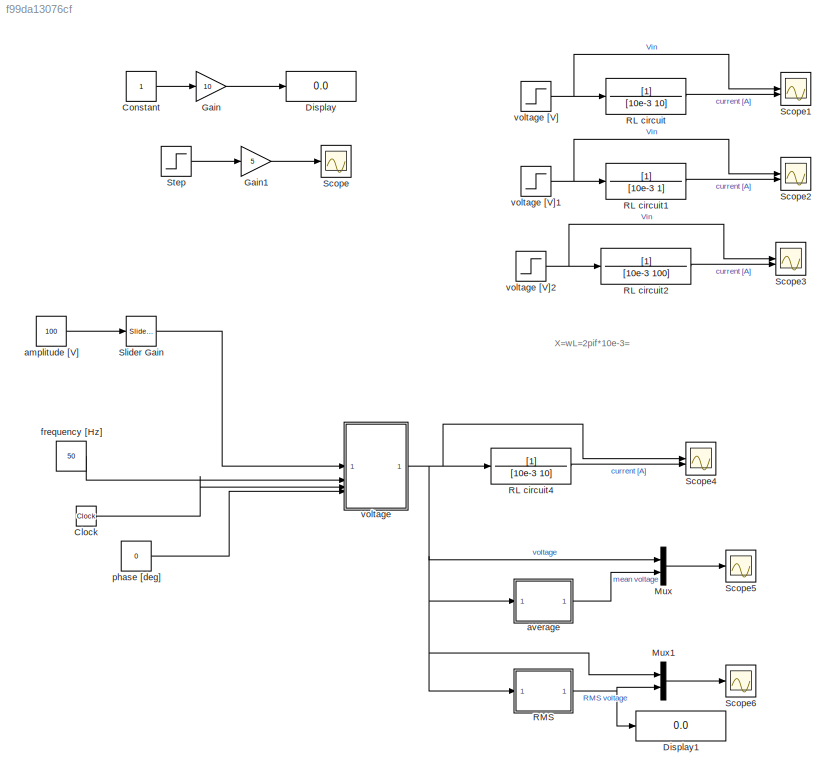
MODEL slx_f99da13076cf
KIND model
CONFIG AbsTol = auto
CONFIG EnableMultiTasking = off
CONFIG FixedStep = 1e-3
CONFIG MaxStep = 1e-3
CONFIG MinStep = auto
CONFIG RelTol = 0.1e-3
CONFIG SampleTimeConstraint = Unconstrained
CONFIG SolverName = VariableStepAuto
CONFIG StartTime = 0.0
CONFIG StopTime = 100
BLOCK [Clock] Clock
BLOCK [Constant] Constant
BLOCK [Display] Display
  Decimation = 1
BLOCK [Display] Display1
  Decimation = 1
BLOCK [Gain] Gain
  Gain = 10
BLOCK [Gain] Gain1
  Gain = 5
BLOCK [Mux] Mux
  DisplayOption = bar
  Inputs = 2
BLOCK [Mux] Mux1
  DisplayOption = bar
  Inputs = 2
BLOCK [TransferFcn] RL circuit
  Denominator = [10e-3 10]
BLOCK [TransferFcn] RL circuit1
  Denominator = [10e-3 1]
BLOCK [TransferFcn] RL circuit2
  Denominator = [10e-3 100]
BLOCK [TransferFcn] RL circuit4
  Denominator = [10e-3 10]
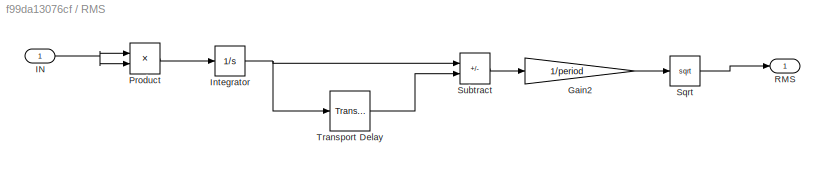
BLOCK [SubSystem] RMS
BLOCK [Gain] RMS/Gain2
  Gain = 1/period
BLOCK [Inport] RMS/IN
BLOCK [Integrator] RMS/Integrator
BLOCK [Product] RMS/Product
BLOCK [Outport] RMS/RMS
BLOCK [Sqrt] RMS/Sqrt
BLOCK [Sum] RMS/Subtract
  IconShape = rectangular
  Inputs = +-
BLOCK [TransportDelay] RMS/Transport Delay
  DelayTime = period
BLOCK [Scope] Scope
  Floating = off
  NumInputPorts = 1
  ScopeSpecificationString = Simulink.scopes.TimeScopeBlockCfg('CurrentConfiguration', extmgr.ConfigurationSet(extmgr.Configuration('Core','General UI',true),extmgr.Configuration('Core','Source UI',true),extmgr.Configuration('Sources','WiredSimulink',true),extmgr.Configuration('Visuals','Time Domain',true,'SerializedDisplays',{struct('MinYLimReal','-0.625','MaxYLimReal','5.625','YLabelReal','','MinYLimMag','0.00000','MaxYLimM...<+1343ch>
BLOCK [Scope] Scope1
  Floating = off
  NumInputPorts = 2
  ScopeSpecificationString = Simulink.scopes.TimeScopeBlockCfg('CurrentConfiguration', extmgr.ConfigurationSet(extmgr.Configuration('Core','General UI',true),extmgr.Configuration('Core','Source UI',true),extmgr.Configuration('Sources','WiredSimulink',true,'DataLoggingVariableName','ScopeData1'),extmgr.Configuration('Visuals','Time Domain',true,'SerializedDisplays',{struct('MinYLimReal','-12.5','MaxYLimReal','112.5','YLabelRea...<+2220ch>
BLOCK [Scope] Scope2
  Floating = off
  NumInputPorts = 2
  ScopeSpecificationString = Simulink.scopes.TimeScopeBlockCfg('CurrentConfiguration', extmgr.ConfigurationSet(extmgr.Configuration('Core','General UI',true),extmgr.Configuration('Core','Source UI',true),extmgr.Configuration('Sources','WiredSimulink',true,'DataLoggingVariableName','ScopeData2'),extmgr.Configuration('Visuals','Time Domain',true,'SerializedDisplays',{struct('MinYLimReal','-12.5','MaxYLimReal','112.5','YLabelRea...<+2130ch>
BLOCK [Scope] Scope3
  Floating = off
  NumInputPorts = 2
  ScopeSpecificationString = Simulink.scopes.TimeScopeBlockCfg('CurrentConfiguration', extmgr.ConfigurationSet(extmgr.Configuration('Core','General UI',true),extmgr.Configuration('Core','Source UI',true),extmgr.Configuration('Sources','WiredSimulink',true,'DataLoggingVariableName','ScopeData3'),extmgr.Configuration('Visuals','Time Domain',true,'SerializedDisplays',{struct('MinYLimReal','-12.5','MaxYLimReal','112.5','YLabelRea...<+2135ch>
BLOCK [Scope] Scope4
  Floating = off
  NumInputPorts = 2
  ScopeSpecificationString = Simulink.scopes.TimeScopeBlockCfg('CurrentConfiguration', extmgr.ConfigurationSet(extmgr.Configuration('Core','General UI',true),extmgr.Configuration('Core','Source UI',true),extmgr.Configuration('Sources','WiredSimulink',true,'DataLoggingVariableName','ScopeData4'),extmgr.Configuration('Visuals','Time Domain',true,'SerializedDisplays',{struct('MinYLimReal','-157.5','MaxYLimReal','157.5','YLabelRe...<+2456ch>
BLOCK [Scope] Scope5
  Floating = off
  NumInputPorts = 1
  ScopeSpecificationString = Simulink.scopes.TimeScopeBlockCfg('CurrentConfiguration', extmgr.ConfigurationSet(extmgr.Configuration('Core','General UI',true),extmgr.Configuration('Core','Source UI',true),extmgr.Configuration('Sources','WiredSimulink',true,'DataLoggingVariableName','ScopeData5'),extmgr.Configuration('Visuals','Time Domain',true,'SerializedDisplays',{struct('MinYLimReal','-66.25','MaxYLimReal','66.25','YLabelRe...<+1541ch>
BLOCK [Scope] Scope6
  Floating = off
  NumInputPorts = 1
  ScopeSpecificationString = Simulink.scopes.TimeScopeBlockCfg('CurrentConfiguration', extmgr.ConfigurationSet(extmgr.Configuration('Core','General UI',true),extmgr.Configuration('Core','Source UI',true),extmgr.Configuration('Sources','WiredSimulink',true,'DataLoggingVariableName','ScopeData6'),extmgr.Configuration('Visuals','Time Domain',true,'SerializedDisplays',{struct('MinYLimReal','-125.00000','MaxYLimReal','125.00000','...<+1567ch>
BLOCK [Reference] Slider Gain  REF=simulink/Math
Operations/Slider
Gain
  SourceBlock = simulink/Math\nOperations/Slider\nGain
  SourceType = Slider Gain
BLOCK [Step] Step
  SampleTime = 0
BLOCK [Constant] amplitude [V]
  Value = 100
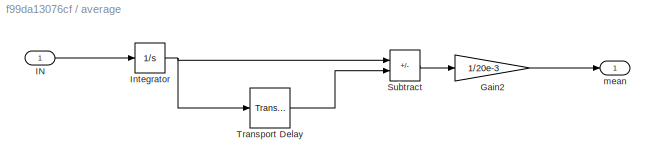
BLOCK [SubSystem] average
BLOCK [Gain] average/Gain2
  Gain = 1/20e-3
BLOCK [Inport] average/IN
BLOCK [Integrator] average/Integrator
BLOCK [Sum] average/Subtract
  IconShape = rectangular
  Inputs = +-
BLOCK [TransportDelay] average/Transport Delay
  DelayTime = 20e-3
BLOCK [Outport] average/mean
BLOCK [Constant] frequency [Hz]
  Value = 50
BLOCK [Constant] phase  [deg]
  Value = 0
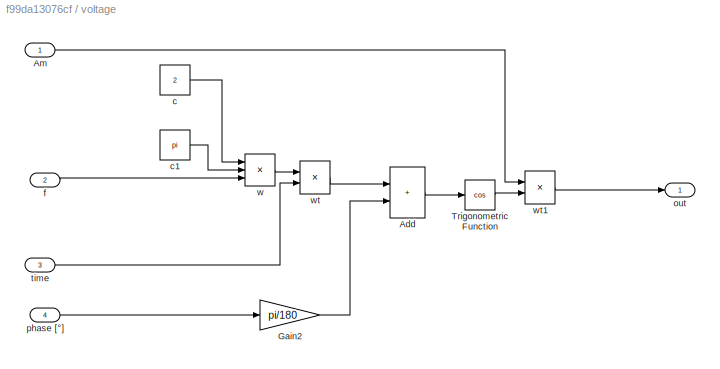
BLOCK [SubSystem] voltage
BLOCK [Step] voltage [V]
  After = 100
  SampleTime = 0
BLOCK [Step] voltage [V]1
  After = 100
  SampleTime = 0
BLOCK [Step] voltage [V]2
  After = 100
  SampleTime = 0
BLOCK [Sum] voltage/Add
  IconShape = rectangular
BLOCK [Inport] voltage/Am
BLOCK [Gain] voltage/Gain2
  Gain = pi/180
BLOCK [Trigonometry] voltage/Trigonometric Function
  Operator = cos
BLOCK [Constant] voltage/c
  Value = 2
BLOCK [Constant] voltage/c1
  Value = pi
BLOCK [Inport] voltage/f
  Port = 2
BLOCK [Outport] voltage/out
BLOCK [Inport] voltage/phase [°]
  Port = 4
BLOCK [Inport] voltage/time
  Port = 3
BLOCK [Product] voltage/w
  Inputs = 3
BLOCK [Product] voltage/wt
BLOCK [Product] voltage/wt1
ANNOTATION (root): X=wL=2pif*10e-3=
LINE Clock:1 -> voltage:3
LINE Constant:1 -> Gain:1
LINE Gain1:1 -> Scope:1
LINE Gain:1 -> Display:1
LINE Mux1:1 -> Scope6:1
LINE Mux:1 -> Scope5:1
LINE RL circuit1:1 -> Scope2:2
LINE RL circuit2:1 -> Scope3:2
LINE RL circuit4:1 -> Scope4:2
LINE RL circuit:1 -> Scope1:2
LINE RMS/Gain2:1 -> RMS/Sqrt:1
NET RMS/IN:1 -> RMS/Product:1, RMS/Product:2
NET RMS/Integrator:1 -> RMS/Subtract:1, RMS/Transport Delay:1
LINE RMS/Product:1 -> RMS/Integrator:1
LINE RMS/Sqrt:1 -> RMS/RMS:1
LINE RMS/Subtract:1 -> RMS/Gain2:1
LINE RMS/Transport Delay:1 -> RMS/Subtract:2
NET RMS:1 -> Display1:1, Mux1:2
LINE Slider Gain:1 -> voltage:1
LINE Step:1 -> Gain1:1
LINE amplitude [V]:1 -> Slider Gain:1
LINE average/Gain2:1 -> average/mean:1
LINE average/IN:1 -> average/Integrator:1
NET average/Integrator:1 -> average/Subtract:1, average/Transport Delay:1
LINE average/Subtract:1 -> average/Gain2:1
LINE average/Transport Delay:1 -> average/Subtract:2
LINE average:1 -> Mux:2
LINE frequency [Hz]:1 -> voltage:2
LINE phase  [deg]:1 -> voltage:4
NET voltage [V]1:1 -> RL circuit1:1, Scope2:1
NET voltage [V]2:1 -> RL circuit2:1, Scope3:1
NET voltage [V]:1 -> RL circuit:1, Scope1:1
LINE voltage/Add:1 -> voltage/Trigonometric Function:1
LINE voltage/Am:1 -> voltage/wt1:1
LINE voltage/Gain2:1 -> voltage/Add:2
LINE voltage/Trigonometric Function:1 -> voltage/wt1:2
LINE voltage/c1:1 -> voltage/w:2
LINE voltage/c:1 -> voltage/w:1
LINE voltage/f:1 -> voltage/w:3
LINE voltage/phase [°]:1 -> voltage/Gain2:1
LINE voltage/time:1 -> voltage/wt:2
LINE voltage/w:1 -> voltage/wt:1
LINE voltage/wt1:1 -> voltage/out:1
LINE voltage/wt:1 -> voltage/Add:1
NET voltage:1 -> Mux1:1, Mux:1, RL circuit4:1, RMS:1, Scope4:1, average:1
note: NET lines group one-source signal fan-out (src -> all destinations, sorted); 1:1 wires keep LINE
